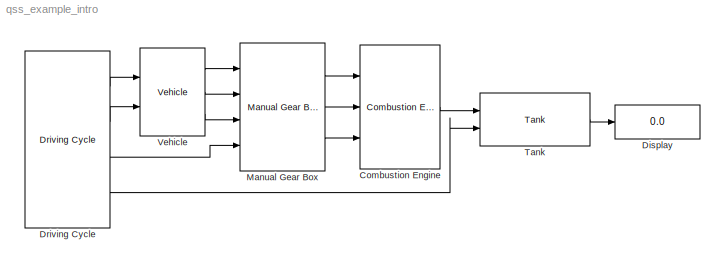
MODEL qss_example_intro
KIND model
BLOCK [Reference] Combustion Engine  REF=qss_tb_library/Energy Converter/Combustion Engine\n(consumption map)  (lib defined in mdl_a75e96b0ff2a, mdl_aad2a3137e65)
  ENABLE_FUEL_CUTOFF = on
  P_CE_cutoff = 0
  P_CE_idle = 2600
  P_aux = 300
  Ports = [3, 1]
  ShowPortLabels = on
  SourceBlock = qss_tb_library/Energy Converter/Combustion Engine\n(consumption map)
  SourceType = Combustion Engine (based on consumption map)
  T_CE_cutoff = 5
  Tag = combustion engine
  V_d = 0.708
  engine_type = Otto
  scale_CE = 1
  theta_CE = 0.05
  w_CE_idle = 105
BLOCK [Display] Display
  Decimation = 1
  Lockdown = off
  Ports = [1]
BLOCK [Reference] Driving Cycle  REF=qss_tb_library/Driving Cycle/Driving Cycle  (lib defined in mdl_a75e96b0ff2a, mdl_aad2a3137e65)
  Ports = [0, 4]
  ShowPortLabels = on
  SourceBlock = qss_tb_library/Driving Cycle/Driving Cycle
  SourceType = Driving Cycle
  Tag = cycle
  autostop = on
  cyclenr = Europe: NEDC
  stepsize = 1
BLOCK [Reference] Manual Gear Box  REF=qss_tb_library/Gear System/Manual Gear Box  (lib defined in mdl_a75e96b0ff2a, mdl_aad2a3137e65)
  P_GT0 = 300
  Ports = [4, 3]
  ShowPortLabels = on
  SourceBlock = qss_tb_library/Gear System/Manual Gear Box
  SourceType = Manual Gear Box
  Tag = transmission
  e_GT = 0.98
  i_1 = 15.174
  i_2 = 8.338
  i_3 = 5.378
  i_4 = 3.937
  i_5 = 2.748
  i_diff = 1
  w_wheel_min = 1
BLOCK [Reference] Tank  REF=qss_tb_library/Energy Source/Tank  (lib defined in mdl_a75e96b0ff2a, mdl_aad2a3137e65)
  Ports = [2, 1]
  ShowPortLabels = on
  SourceBlock = qss_tb_library/Energy Source/Tank
  SourceType = Tank
  Tag = tank
  flag_cold_start = on
  fuel = Gasoline
BLOCK [Reference] Vehicle  REF=qss_tb_library/Vehicle/Vehicle  (lib defined in mdl_a75e96b0ff2a, mdl_aad2a3137e65)
  A_f = 1.8
  Ports = [2, 3]
  ShowPortLabels = on
  SourceBlock = qss_tb_library/Vehicle/Vehicle
  SourceType = Vehicle
  Tag = vehicle
  cw = 0.22
  d_wheel = 0.5
  m_f = 750
  mt2m_f = 5
  mu = 0.008
LINE Combustion Engine:1 -> Tank:1
LINE Driving Cycle:1 -> Vehicle:1
LINE Driving Cycle:2 -> Vehicle:2
LINE Driving Cycle:3 -> Manual Gear Box:4
LINE Driving Cycle:4 -> Tank:2
LINE Manual Gear Box:1 -> Combustion Engine:1
LINE Manual Gear Box:2 -> Combustion Engine:2
LINE Manual Gear Box:3 -> Combustion Engine:3
LINE Tank:1 -> Display:1
LINE Vehicle:1 -> Manual Gear Box:1
LINE Vehicle:2 -> Manual Gear Box:2
LINE Vehicle:3 -> Manual Gear Box:3
